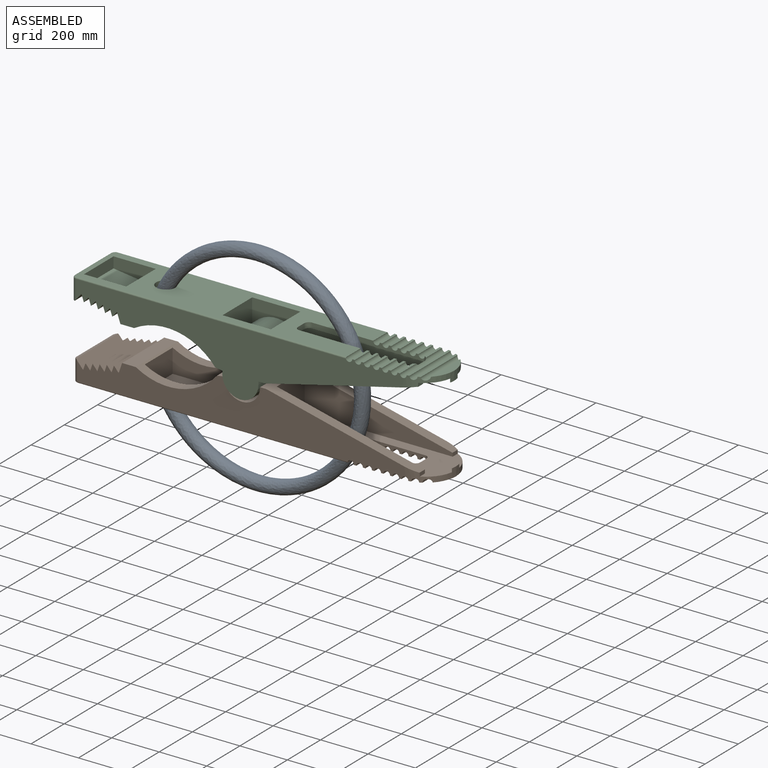
[diagram: assembled view]
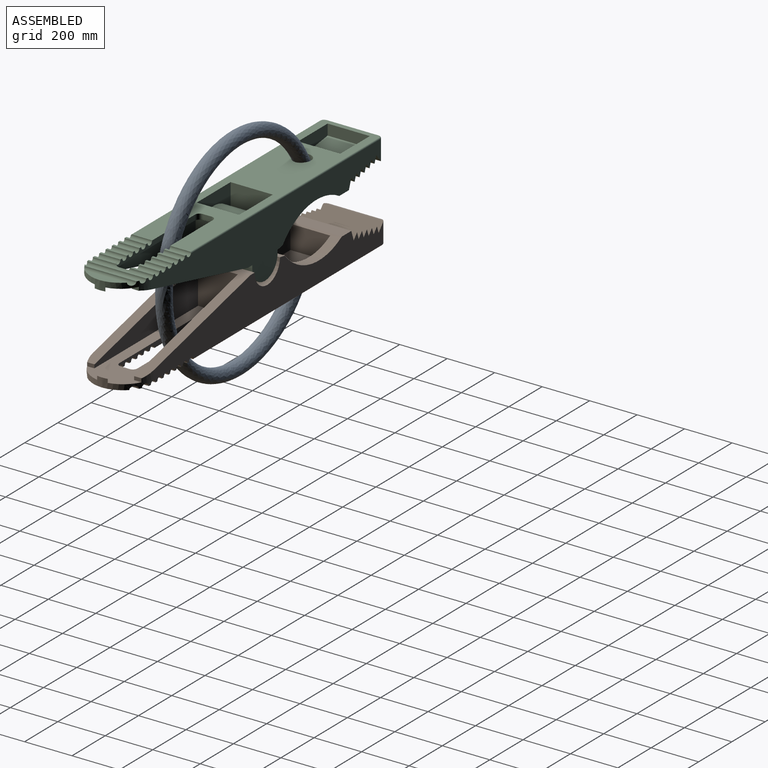
[diagram: assembled view, second angle]
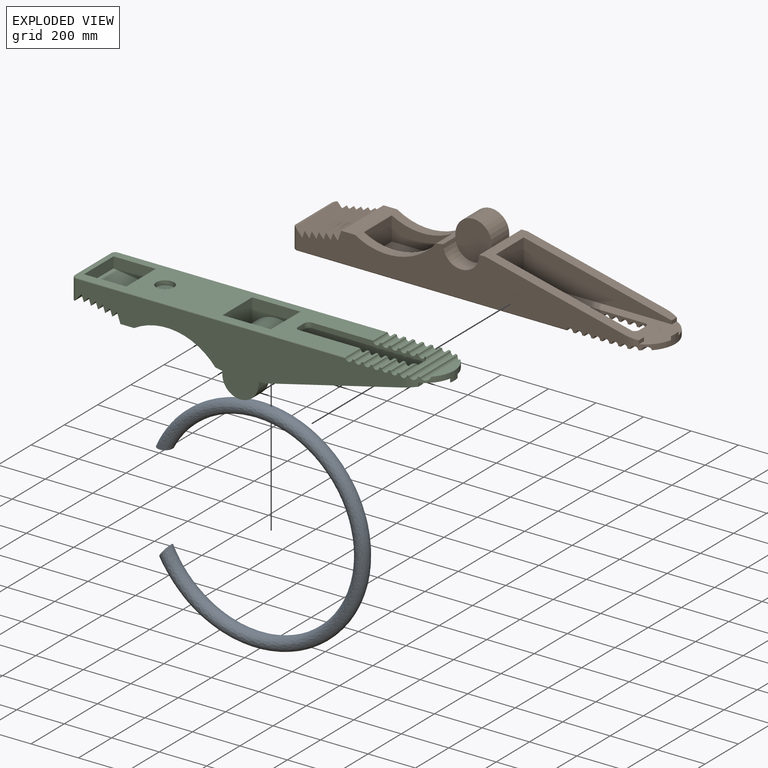
[diagram: exploded view]
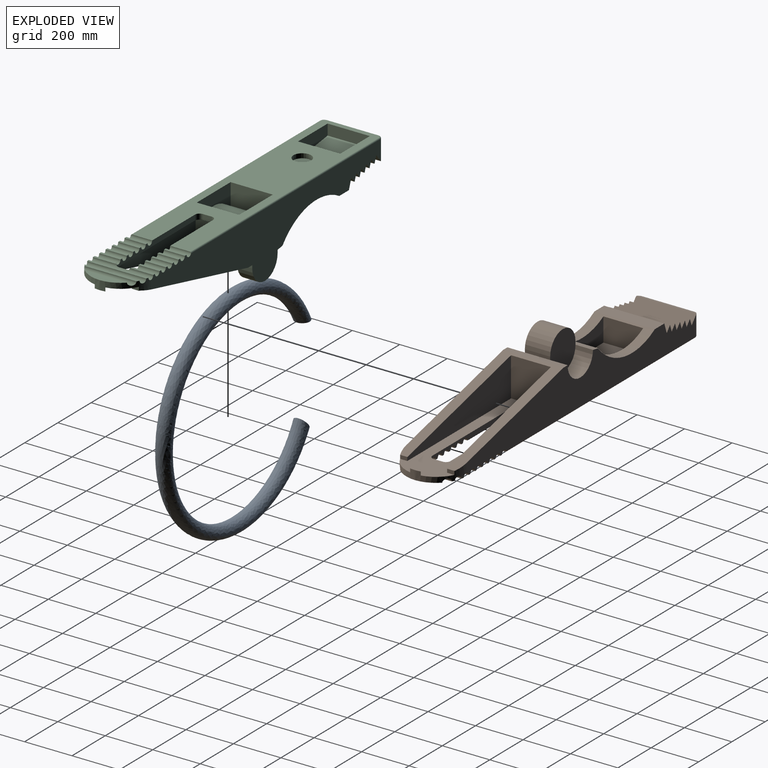
[diagram: exploded view, second angle]
ASSEMBLY  parts=3 mates=2
PART A: 3 faces, bbox 1459.8x127x1341 mm
  f0: plane 63.5x63.5mm, normal (0,0,-1), area 3166.9mm2, adj f2
  f1: plane 63.5x51.09mm, normal (0.8,0,0.59), area 3166.9mm2, adj f2
  f2: bspline ~1459.79x1341.03mm, area 446293mm2, adj f0,f1
PART B: 103 faces, bbox 1525.5x257x279.4 mm
  f0: plane 106.68x12.7mm, normal (1,0,0), area 1354.8mm2, adj f1,f46,f100,f102
  f1: cylinder r=76.2mm len=152.4mm, axis (0,1,0), area 25538.1mm2, adj f0,f2,f100,f102
  f2: plane 106.68x12.7mm, normal (-1,0,0), area 1354.8mm2, adj f1,f98,f100,f102
  f3: plane 1376.83x190.5mm, normal (0,1,0), area 154033.3mm2, adj f5,f8,f9,f10,f11,f12,f13,f14
  f4: plane 1376.83x190.5mm, normal (0,-1,0), area 154033.3mm2, adj f5,f7,f18,f26,f30,f31,f32,f33
  f5: cylinder r=265.61mm len=342.22mm, axis (0,1,0), area 35141.5mm2, adj f3,f4,f19,f20,f35,f69,f70,f98
  f6: plane 1149.52x243.84mm, normal (0,0,-1), area 187108.8mm2, adj f13,f56,f71,f72,f73,f74,f75,f79
  f7: plane 99.16x10.52mm, normal (0,0,-1), area 985.6mm2, adj f4,f18,f62,f76
  f8: plane 88.33x10.52mm, normal (0,0,-1), area 928.9mm2, adj f3,f17,f61,f75
  f9: plane 88.33x10.52mm, normal (0,0,-1), area 928.9mm2, adj f3,f16,f17,f75
  f10: plane 88.33x10.52mm, normal (0,0,-1), area 928.9mm2, adj f3,f15,f16,f75
  f11: plane 88.33x10.52mm, normal (0,0,-1), area 928.9mm2, adj f3,f14,f15,f75
  f12: plane 88.33x10.52mm, normal (0,0,-1), area 928.9mm2, adj f3,f13,f14,f75
  f13: cylinder r=13.79mm len=88.33mm, axis (0,-1,0), area 3821.4mm2, adj f3,f6,f12,f75,f94
  f14: cylinder r=13.79mm len=88.33mm, axis (0,-1,0), area 3827mm2, adj f3,f11,f12,f75
  f15: cylinder r=13.79mm len=88.33mm, axis (0,-1,0), area 3827mm2, adj f3,f10,f11,f75
  f16: cylinder r=13.79mm len=88.33mm, axis (0,-1,0), area 3827mm2, adj f3,f9,f10,f75
  f17: cylinder r=13.79mm len=88.33mm, axis (0,-1,0), area 3827mm2, adj f3,f8,f9,f75
  f18: cylinder r=13.79mm len=90.47mm, axis (0,-1,0), area 3883.6mm2, adj f4,f7,f30,f74,f76
  f19: plane 167.64x99.64mm, normal (1,0,0), area 16703.7mm2, adj f5,f21,f69,f70
  f20: plane 167.64x158.21mm, normal (-1,0,0), area 26523.1mm2, adj f5,f21,f69,f70
  f21: plane 330.77x167.64mm, normal (0,0,1), area 55450.4mm2, adj f19,f20,f69,f70
  f22: plane 167.64x164.21mm, normal (1,0,0), area 27528.3mm2, adj f23,f43,f66,f68
  f23: plane 694.86x228.6mm, normal (0,0,1), area 78055.9mm2, adj f22,f26,f27,f48,f65,f66,f67,f68
  f24: plane 230.58x10.52mm, normal (0,0,-1), area 2370.1mm2, adj f26,f27,f63,f64
  f25: plane 177.16x37.01mm, normal (0,0,-1), area 4475mm2, adj f26,f27,f64
  f26: cylinder r=128.77mm len=128.76mm, axis (0,0,-1), area 5275.7mm2, adj f4,f23,f24,f25,f27,f28,f41,f43
  f27: cylinder r=128.77mm len=128.76mm, axis (0,0,1), area 5276.2mm2, adj f3,f23,f24,f25,f26,f28,f41,f42
  f28: plane 252.11x10.52mm, normal (0,0,-1), area 2634.9mm2, adj f26,f27,f62,f63
  f29: plane 98.02x10.52mm, normal (0,0,-1), area 973.5mm2, adj f3,f61,f62,f78
  f30: plane 89.47x10.52mm, normal (0,0,-1), area 941mm2, adj f4,f18,f60,f74
  f31: plane 89.47x10.52mm, normal (0,0,-1), area 941mm2, adj f4,f59,f60,f74
  f32: plane 89.47x10.52mm, normal (0,0,-1), area 941mm2, adj f4,f58,f59,f74
  f33: plane 89.47x10.52mm, normal (0,0,-1), area 941mm2, adj f4,f57,f58,f74
  f34: plane 89.47x10.52mm, normal (0,0,-1), area 941mm2, adj f4,f56,f57,f74
  f35: plane 254x57.49mm, normal (0,0,1), area 14601.9mm2, adj f3,f4,f5,f54
  f36: plane 254x28.79mm, normal (-0.94,0,0.33), area 7741.9mm2, adj f3,f4,f53,f55
  f37: plane 254x28.79mm, normal (-0.94,0,0.33), area 7741.9mm2, adj f3,f4,f52,f53
  f38: plane 254x28.79mm, normal (-0.94,0,0.33), area 7741.9mm2, adj f3,f4,f51,f52
  f39: plane 254x28.79mm, normal (-0.94,0,0.33), area 7741.9mm2, adj f3,f4,f50,f51
  f40: plane 254x28.79mm, normal (-0.94,0,0.33), area 7741.9mm2, adj f3,f4,f49,f50
  f41: plane 44.8x2.28mm, normal (0,0,1), area 65.8mm2, adj f26,f27,f48
  f42: plane 31.96x3.19mm, normal (0,0,1), area 99.6mm2, adj f27,f43,f65,f66
  f43: plane 635.24x254mm, normal (0.23,0,0.97), area 58482.8mm2, adj f3,f4,f22,f26,f27,f42,f45,f46
  f44: plane 217.21x83.82mm, normal (-1,0,0), area 18206.3mm2, adj f47,f91,f92,f97
  f45: plane 31.96x3.19mm, normal (0,0,1), area 99.6mm2, adj f26,f43,f67,f68
  f46: plane 254x25.4mm, normal (0,0,1), area 6451.6mm2, adj f0,f3,f4,f43,f99,f101
  f47: plane 251.26x11.43mm, normal (-0.19,0,0.98), area 2814.1mm2, adj f44,f49,f91,f92
  f48: plane 44.8x15.24mm, normal (-1,0,0), area 682.7mm2, adj f23,f26,f27,f41
  f49: plane 254x34.61mm, normal (0.76,0,0.65), area 11603.3mm2, adj f3,f4,f40,f47,f91,f92
  f50: plane 254x23.07mm, normal (0.76,0,0.65), area 7741.9mm2, adj f3,f4,f39,f40
  f51: plane 254x23.07mm, normal (0.76,0,0.65), area 7741.9mm2, adj f3,f4,f38,f39
  f52: plane 254x23.07mm, normal (0.76,0,0.65), area 7741.9mm2, adj f3,f4,f37,f38
  f53: plane 254x23.07mm, normal (0.76,0,0.65), area 7741.9mm2, adj f3,f4,f36,f37
  f54: plane 254x41.95mm, normal (-0.94,0,0.33), area 11282.3mm2, adj f3,f4,f35,f55
  f55: plane 254x23.07mm, normal (0.76,0,0.65), area 7741.9mm2, adj f3,f4,f36,f54
  f56: cylinder r=13.79mm len=89.47mm, axis (0,-1,0), area 3871.1mm2, adj f4,f6,f34,f74,f93
  f57: cylinder r=13.79mm len=89.47mm, axis (0,-1,0), area 3876.7mm2, adj f4,f33,f34,f74
  f58: cylinder r=13.79mm len=89.47mm, axis (0,-1,0), area 3876.7mm2, adj f4,f32,f33,f74
  f59: cylinder r=13.79mm len=89.47mm, axis (0,-1,0), area 3876.7mm2, adj f4,f31,f32,f74
  f60: cylinder r=13.79mm len=89.47mm, axis (0,-1,0), area 3876.7mm2, adj f4,f30,f31,f74
  f61: cylinder r=13.79mm len=89.32mm, axis (0,-1,0), area 3833.9mm2, adj f3,f8,f29,f75,f78
  f62: cylinder r=13.79mm len=254mm, axis (0,-1,0), area 10541.3mm2, adj f3,f4,f7,f26,f27,f28,f29,f76
  f63: cylinder r=13.79mm len=248.67mm, axis (0,-1,0), area 10419.8mm2, adj f24,f26,f27,f28
  f64: cylinder r=13.79mm len=219.74mm, axis (0,-1,0), area 8663.4mm2, adj f24,f25,f26,f27
  f65: plane 30.48x15.24mm, normal (1,0,0), area 464.5mm2, adj f23,f27,f42,f66
  f66: plane 624.14x164.21mm, normal (0,-1,0), area 55763.3mm2, adj f22,f23,f42,f43,f65
  f67: plane 30.48x15.24mm, normal (1,0,0), area 464.5mm2, adj f23,f26,f45,f68
  f68: plane 624.14x164.21mm, normal (0,1,0), area 55763.3mm2, adj f22,f23,f43,f45,f67
  f69: plane 330.77x158.21mm, normal (0,-1,0), area 28908.4mm2, adj f5,f19,f20,f21
  f70: plane 330.77x158.21mm, normal (0,1,0), area 28908.4mm2, adj f5,f19,f20,f21
  f71: cylinder r=19.05mm len=22.86mm, axis (0,0,1), area 684.1mm2, adj f6,f23,f72,f75
  f72: plane 38.1x22.86mm, normal (1,0,0), area 871mm2, adj f6,f23,f71,f73
  f73: cylinder r=19.05mm len=22.86mm, axis (0,0,1), area 684.1mm2, adj f6,f23,f72,f74
  f74: plane 469.9x22.86mm, normal (0,1,0), area 8998.1mm2, adj f6,f18,f23,f30,f31,f32,f33,f34
  f75: plane 469.9x22.86mm, normal (0,-1,0), area 8998.1mm2, adj f6,f8,f9,f10,f11,f12,f13,f14
  f76: cylinder r=19.05mm len=22.86mm, axis (0,0,1), area 573.7mm2, adj f7,f18,f23,f62,f74,f77
  f77: plane 38.1x15mm, normal (-1,0,0), area 571.6mm2, adj f23,f62,f76,f78
  f78: cylinder r=19.05mm len=22.86mm, axis (0,0,1), area 573.7mm2, adj f23,f29,f61,f62,f75,f77
  f79: plane 177.8x69.06mm, normal (0,-1,0), area 10204.3mm2, adj f6,f80,f81,f82
  f80: plane 177.8x177.8mm, normal (0.13,0,-0.99), area 31884.2mm2, adj f79,f81,f82,f83
  f81: plane 177.8x69.06mm, normal (-1,0,0), area 12279.7mm2, adj f6,f79,f80,f83
  f82: plane 177.8x45.72mm, normal (1,0,0), area 8129mm2, adj f6,f79,f80,f83
  f83: plane 177.8x69.06mm, normal (0,1,0), area 10204.3mm2, adj f6,f80,f81,f82
  f84: plane 203.2x102.02mm, normal (0,-1,0), area 13515mm2, adj f6,f85,f86,f87
  f85: plane 177.8x102.02mm, normal (-1,0,0), area 18138.2mm2, adj f6,f84,f87,f88
  f86: plane 177.8x102.02mm, normal (1,0,0), area 18138.2mm2, adj f6,f84,f87,f88
  f87: cylinder r=127mm len=203.2mm, axis (0,-1,0), area 41877.8mm2, adj f84,f85,f86,f88
  f88: plane 203.2x102.02mm, normal (0,1,0), area 13515mm2, adj f6,f85,f86,f87
  f89: cylinder r=37.53mm len=75.05mm, axis (0,0,-1), area 4491.7mm2, adj f6,f90
  f90: plane 75.05x75.05mm, normal (0,0,-1), area 4424mm2, adj f89
  f91: cylinder r=18.4mm len=86mm, axis (0,0,-1), area 2425.9mm2, adj f3,f44,f47,f49,f96
  f92: cylinder r=18.4mm len=86mm, axis (0,0,1), area 2425.9mm2, adj f4,f44,f47,f49,f95
  f93: cylinder r=5.08mm len=1137.17mm, axis (-1,0,0), area 9068.2mm2, adj f4,f6,f56,f95
  f94: cylinder r=5.08mm len=1137.17mm, axis (1,0,0), area 9068.2mm2, adj f3,f6,f13,f96
  f95: torus R=13.32mm, axis (0,0,1), area 207.4mm2, adj f6,f92,f93,f97
  f96: torus R=13.32mm, axis (0,0,1), area 207.4mm2, adj f6,f91,f94,f97
  f97: cylinder r=5.08mm len=217.21mm, axis (0,-1,0), area 1733.2mm2, adj f6,f44,f95,f96
  f98: plane 254x29.44mm, normal (-0.17,0,0.99), area 7587.2mm2, adj f2,f3,f4,f5,f99,f101
  f99: cylinder r=76.2mm len=152.4mm, axis (0,1,0), area 17633.4mm2, adj f3,f46,f98,f100
  f100: plane 165.1x152.4mm, normal (0,1,0), area 20176.9mm2, adj f0,f1,f2,f99
  f101: cylinder r=76.2mm len=152.4mm, axis (0,-1,0), area 17633.4mm2, adj f4,f46,f98,f102
  f102: plane 165.1x152.4mm, normal (0,-1,0), area 20176.9mm2, adj f0,f1,f2,f101
PART C: 103 faces, bbox 1525.5x257x279.4 mm
  f0: cylinder r=76.2mm len=152.4mm, axis (0,1,0), area 15201.2mm2, adj f1,f45,f47,f101
  f1: plane 1376.83x279.4mm, normal (0,-1,0), area 174210.2mm2, adj f0,f3,f5,f16,f24,f28,f29,f30
  f2: plane 1376.83x279.4mm, normal (0,1,0), area 174210.2mm2, adj f3,f6,f7,f8,f9,f10,f11,f12
  f3: cylinder r=265.61mm len=342.22mm, axis (0,1,0), area 35141.5mm2, adj f1,f2,f17,f18,f33,f70,f71,f99
  f4: plane 1149.52x243.84mm, normal (0,0,1), area 187108.8mm2, adj f11,f57,f72,f73,f74,f75,f76,f80
  f5: plane 99.16x10.52mm, normal (0,0,1), area 985.6mm2, adj f1,f16,f63,f77
  f6: plane 88.33x10.52mm, normal (0,0,1), area 928.9mm2, adj f2,f15,f62,f76
  f7: plane 88.33x10.52mm, normal (0,0,1), area 928.9mm2, adj f2,f14,f15,f76
  f8: plane 88.33x10.52mm, normal (0,0,1), area 928.9mm2, adj f2,f13,f14,f76
  f9: plane 88.33x10.52mm, normal (0,0,1), area 928.9mm2, adj f2,f12,f13,f76
  f10: plane 88.33x10.52mm, normal (0,0,1), area 928.9mm2, adj f2,f11,f12,f76
  f11: cylinder r=13.79mm len=88.33mm, axis (0,-1,0), area 3821.4mm2, adj f2,f4,f10,f76,f95
  f12: cylinder r=13.79mm len=88.33mm, axis (0,-1,0), area 3827mm2, adj f2,f9,f10,f76
  f13: cylinder r=13.79mm len=88.33mm, axis (0,-1,0), area 3827mm2, adj f2,f8,f9,f76
  f14: cylinder r=13.79mm len=88.33mm, axis (0,-1,0), area 3827mm2, adj f2,f7,f8,f76
  f15: cylinder r=13.79mm len=88.33mm, axis (0,-1,0), area 3827mm2, adj f2,f6,f7,f76
  f16: cylinder r=13.79mm len=90.47mm, axis (0,-1,0), area 3883.6mm2, adj f1,f5,f28,f75,f77
  f17: plane 167.64x99.64mm, normal (1,0,0), area 16703.7mm2, adj f3,f19,f70,f71
  f18: plane 167.64x158.21mm, normal (-1,0,0), area 26523.1mm2, adj f3,f19,f70,f71
  f19: plane 330.77x167.64mm, normal (0,0,-1), area 55450.4mm2, adj f17,f18,f70,f71
  f20: plane 167.64x164.21mm, normal (1,0,0), area 27528.3mm2, adj f21,f41,f67,f69
  f21: plane 694.86x228.6mm, normal (0,0,-1), area 78055.9mm2, adj f20,f24,f25,f49,f66,f67,f68,f69
  f22: plane 230.58x10.52mm, normal (0,0,1), area 2370.1mm2, adj f24,f25,f64,f65
  f23: plane 177.16x37.01mm, normal (0,0,1), area 4475mm2, adj f24,f25,f65
  f24: cylinder r=128.77mm len=128.76mm, axis (0,0,1), area 5276mm2, adj f1,f21,f22,f23,f25,f26,f39,f41
  f25: cylinder r=128.77mm len=128.76mm, axis (0,0,-1), area 5275.7mm2, adj f2,f21,f22,f23,f24,f26,f39,f40
  f26: plane 252.11x10.52mm, normal (0,0,1), area 2634.9mm2, adj f24,f25,f63,f64
  f27: plane 98.02x10.52mm, normal (0,0,1), area 973.5mm2, adj f2,f62,f63,f79
  f28: plane 89.47x10.52mm, normal (0,0,1), area 941mm2, adj f1,f16,f61,f75
  f29: plane 89.47x10.52mm, normal (0,0,1), area 941mm2, adj f1,f60,f61,f75
  f30: plane 89.47x10.52mm, normal (0,0,1), area 941mm2, adj f1,f59,f60,f75
  f31: plane 89.47x10.52mm, normal (0,0,1), area 941mm2, adj f1,f58,f59,f75
  f32: plane 89.47x10.52mm, normal (0,0,1), area 941mm2, adj f1,f57,f58,f75
  f33: plane 254x57.49mm, normal (0,0,-1), area 14601.9mm2, adj f1,f2,f3,f55
  f34: plane 254x28.79mm, normal (-0.94,0,-0.33), area 7741.9mm2, adj f1,f2,f54,f56
  f35: plane 254x28.79mm, normal (-0.94,0,-0.33), area 7741.9mm2, adj f1,f2,f53,f54
  f36: plane 254x28.79mm, normal (-0.94,0,-0.33), area 7741.9mm2, adj f1,f2,f52,f53
  f37: plane 254x28.79mm, normal (-0.94,0,-0.33), area 7741.9mm2, adj f1,f2,f51,f52
  f38: plane 254x28.79mm, normal (-0.94,0,-0.33), area 7741.9mm2, adj f1,f2,f50,f51
  f39: plane 44.8x2.28mm, normal (0,0,-1), area 65.8mm2, adj f24,f25,f49
  f40: plane 31.96x3.19mm, normal (0,0,-1), area 99.6mm2, adj f25,f41,f66,f67
  f41: plane 635.24x254mm, normal (0.23,0,-0.97), area 58482.8mm2, adj f1,f2,f20,f24,f25,f40,f43,f44
  f42: plane 217.21x83.82mm, normal (-1,0,0), area 18206.3mm2, adj f48,f92,f93,f98
  f43: plane 31.96x3.19mm, normal (0,0,-1), area 99.6mm2, adj f24,f41,f68,f69
  f44: plane 254x25.4mm, normal (0,0,-1), area 6451.6mm2, adj f1,f2,f41,f45
  f45: plane 254x12.7mm, normal (1,0,0), area 3225.8mm2, adj f0,f1,f2,f44,f46,f100
  f46: cylinder r=76.2mm len=152.4mm, axis (0,1,0), area 15201.2mm2, adj f2,f45,f47,f102
  f47: plane 254x12.7mm, normal (-1,0,0), area 3225.8mm2, adj f0,f1,f2,f46,f99,f100
  f48: plane 251.26x11.43mm, normal (-0.19,0,-0.98), area 2814.1mm2, adj f42,f50,f92,f93
  f49: plane 44.8x15.24mm, normal (-1,0,0), area 682.7mm2, adj f21,f24,f25,f39
  f50: plane 254x34.61mm, normal (0.76,0,-0.65), area 11603.3mm2, adj f1,f2,f38,f48,f92,f93
  f51: plane 254x23.07mm, normal (0.76,0,-0.65), area 7741.9mm2, adj f1,f2,f37,f38
  f52: plane 254x23.07mm, normal (0.76,0,-0.65), area 7741.9mm2, adj f1,f2,f36,f37
  f53: plane 254x23.07mm, normal (0.76,0,-0.65), area 7741.9mm2, adj f1,f2,f35,f36
  f54: plane 254x23.07mm, normal (0.76,0,-0.65), area 7741.9mm2, adj f1,f2,f34,f35
  f55: plane 254x41.95mm, normal (-0.94,0,-0.33), area 11282.3mm2, adj f1,f2,f33,f56
  f56: plane 254x23.07mm, normal (0.76,0,-0.65), area 7741.9mm2, adj f1,f2,f34,f55
  f57: cylinder r=13.79mm len=89.47mm, axis (0,-1,0), area 3871.1mm2, adj f1,f4,f32,f75,f94
  f58: cylinder r=13.79mm len=89.47mm, axis (0,-1,0), area 3876.7mm2, adj f1,f31,f32,f75
  f59: cylinder r=13.79mm len=89.47mm, axis (0,-1,0), area 3876.7mm2, adj f1,f30,f31,f75
  f60: cylinder r=13.79mm len=89.47mm, axis (0,-1,0), area 3876.7mm2, adj f1,f29,f30,f75
  f61: cylinder r=13.79mm len=89.47mm, axis (0,-1,0), area 3876.7mm2, adj f1,f28,f29,f75
  f62: cylinder r=13.79mm len=89.32mm, axis (0,-1,0), area 3833.9mm2, adj f2,f6,f27,f76,f79
  f63: cylinder r=13.79mm len=254mm, axis (0,-1,0), area 10541.3mm2, adj f1,f2,f5,f24,f25,f26,f27,f77
  f64: cylinder r=13.79mm len=248.67mm, axis (0,-1,0), area 10419.7mm2, adj f22,f24,f25,f26
  f65: cylinder r=13.79mm len=219.74mm, axis (0,-1,0), area 8663.4mm2, adj f22,f23,f24,f25
  f66: plane 30.48x15.24mm, normal (1,0,0), area 464.5mm2, adj f21,f25,f40,f67
  f67: plane 624.14x164.21mm, normal (0,-1,0), area 55763.3mm2, adj f20,f21,f40,f41,f66
  f68: plane 30.48x15.24mm, normal (1,0,0), area 464.5mm2, adj f21,f24,f43,f69
  f69: plane 624.14x164.21mm, normal (0,1,0), area 55763.3mm2, adj f20,f21,f41,f43,f68
  f70: plane 330.77x158.21mm, normal (0,-1,0), area 28908.4mm2, adj f3,f17,f18,f19
  f71: plane 330.77x158.21mm, normal (0,1,0), area 28908.4mm2, adj f3,f17,f18,f19
  f72: cylinder r=19.05mm len=22.86mm, axis (0,0,-1), area 684.1mm2, adj f4,f21,f73,f76
  f73: plane 38.1x22.86mm, normal (1,0,0), area 871mm2, adj f4,f21,f72,f74
  f74: cylinder r=19.05mm len=22.86mm, axis (0,0,-1), area 684.1mm2, adj f4,f21,f73,f75
  f75: plane 469.9x22.86mm, normal (0,1,0), area 8998.1mm2, adj f4,f16,f21,f28,f29,f30,f31,f32
  f76: plane 469.9x22.86mm, normal (0,-1,0), area 8998.1mm2, adj f4,f6,f7,f8,f9,f10,f11,f12
  f77: cylinder r=19.05mm len=22.86mm, axis (0,0,-1), area 573.7mm2, adj f5,f16,f21,f63,f75,f78
  f78: plane 38.1x15mm, normal (-1,0,0), area 571.6mm2, adj f21,f63,f77,f79
  f79: cylinder r=19.05mm len=22.86mm, axis (0,0,-1), area 573.7mm2, adj f21,f27,f62,f63,f76,f78
  f80: plane 177.8x69.06mm, normal (0,-1,0), area 10204.3mm2, adj f4,f81,f82,f83
  f81: plane 177.8x177.8mm, normal (0.13,0,0.99), area 31884.2mm2, adj f80,f82,f83,f84
  f82: plane 177.8x69.06mm, normal (-1,0,0), area 12279.7mm2, adj f4,f80,f81,f84
  f83: plane 177.8x45.72mm, normal (1,0,0), area 8129mm2, adj f4,f80,f81,f84
  f84: plane 177.8x69.06mm, normal (0,1,0), area 10204.3mm2, adj f4,f81,f82,f83
  f85: plane 203.2x102.02mm, normal (0,-1,0), area 13515mm2, adj f4,f86,f87,f88
  f86: plane 177.8x102.02mm, normal (-1,0,0), area 18138.2mm2, adj f4,f85,f88,f89
  f87: plane 177.8x102.02mm, normal (1,0,0), area 18138.2mm2, adj f4,f85,f88,f89
  f88: cylinder r=127mm len=203.2mm, axis (0,-1,0), area 41877.8mm2, adj f85,f86,f87,f89
  f89: plane 203.2x102.02mm, normal (0,1,0), area 13515mm2, adj f4,f86,f87,f88
  f90: cylinder r=37.53mm len=75.05mm, axis (0,0,1), area 4491.7mm2, adj f4,f91
  f91: plane 75.05x75.05mm, normal (0,0,1), area 4424mm2, adj f90
  f92: cylinder r=18.4mm len=86mm, axis (0,0,1), area 2425.9mm2, adj f2,f42,f48,f50,f97
  f93: cylinder r=18.4mm len=86mm, axis (0,0,-1), area 2425.9mm2, adj f1,f42,f48,f50,f96
  f94: cylinder r=5.08mm len=1137.17mm, axis (-1,0,0), area 9068.2mm2, adj f1,f4,f57,f96
  f95: cylinder r=5.08mm len=1137.17mm, axis (1,0,0), area 9068.2mm2, adj f2,f4,f11,f97
  f96: torus R=13.32mm, axis (0,0,-1), area 207.4mm2, adj f4,f93,f94,f98
  f97: torus R=13.32mm, axis (0,0,-1), area 207.4mm2, adj f4,f92,f95,f98
  f98: cylinder r=5.08mm len=217.21mm, axis (0,-1,0), area 1733.2mm2, adj f4,f42,f96,f97
  f99: plane 254x29.44mm, normal (-0.17,0,-0.99), area 7587.2mm2, adj f1,f2,f3,f47
  f100: cylinder r=76.2mm len=152.4mm, axis (0,1,0), area 30402.4mm2, adj f45,f47,f101,f102
  f101: plane 152.4x152.4mm, normal (0,1,0), area 18241.5mm2, adj f0,f100
  f102: plane 152.4x152.4mm, normal (0,-1,0), area 18241.5mm2, adj f46,f100
PLACE A rot(axis=(0,1,0),126.4deg) t=(-359.95,177.53,-1.61)mm
PLACE B t=(83.65,187.69,-653.96)mm fixed
PLACE C t=(83.65,177.53,-641.26)mm
MATE fastened C.f0 <-> B.f1  axis (0,-1,0) through (35.59,114.03,-201.84)mm
MATE fastened A.f1 <-> C.f90  axis (0,0,-1) through (-370.57,50.53,-17.69)mm
